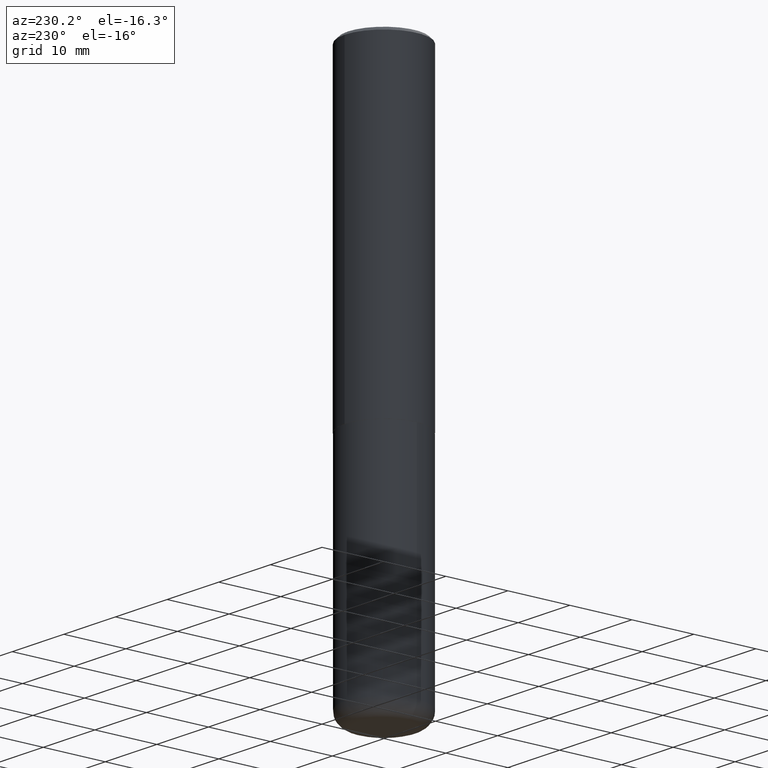
[diagram: clean part render]
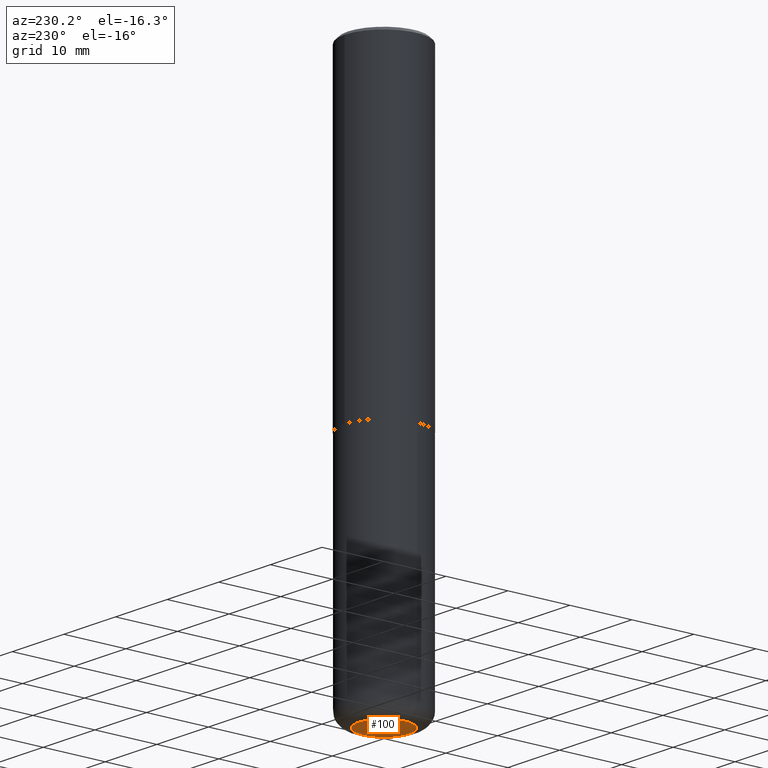
[diagram: same view with one face highlighted and labeled with its STEP entity id]
A machine part, auxiliary view. The second image highlights one B-rep face of the part: STEP entity #100.
In plain terms, the highlighted planar face has unit normal (0, -0, -1).
Its self-contained STEP definition (entity closure, byte-faithful):
#1 = DIRECTION ( 'NONE',  ( -2.445468806185136597E-29, 3.491481338843145583E-15, 1.000000000000000000 ) ) ;
#22 = ORIENTED_EDGE ( 'NONE', *, *, #150, .F. ) ;
#46 = DIRECTION ( 'NONE',  ( -1.000000000000000000, 6.982962677686265922E-15, -4.876176775795935793E-29 ) ) ;
#67 = FACE_OUTER_BOUND ( 'NONE', #109, .T. ) ;
#70 = AXIS2_PLACEMENT_3D ( 'NONE', #275, #1, #193 ) ;
#100 = ADVANCED_FACE ( 'NONE', ( #67 ), #417, .T. ) ;
#109 = EDGE_LOOP ( 'NONE', ( #22, #116 ) ) ;
#116 = ORIENTED_EDGE ( 'NONE', *, *, #402, .F. ) ;
#150 = EDGE_CURVE ( 'NONE', #239, #371, #296, .T. ) ;
#193 = DIRECTION ( 'NONE',  ( 1.000000000000000000, -6.982962677686259611E-15, 0.000000000000000000 ) ) ;
#196 = AXIS2_PLACEMENT_3D ( 'NONE', #322, #325, #46 ) ;
#205 = DIRECTION ( 'NONE',  ( -2.445468806185136597E-29, 3.491481338843145583E-15, 1.000000000000000000 ) ) ;
#235 = CARTESIAN_POINT ( 'NONE',  ( 8.559140821647976968E-29, -1.222018468595100619E-14, -3.499999999999999112 ) ) ;
#239 = VERTEX_POINT ( 'NONE', #383 ) ;
#275 = CARTESIAN_POINT ( 'NONE',  ( 8.559140821647976968E-29, -1.222018468595100619E-14, -3.499999999999999112 ) ) ;
#290 = CIRCLE ( 'NONE', #392, 0.1600000000000000033 ) ;
#296 = CIRCLE ( 'NONE', #70, 0.1600000000000000033 ) ;
#301 = CARTESIAN_POINT ( 'NONE',  ( -0.1600000000000000033, -1.060645541739486182E-14, -3.499999999999999112 ) ) ;
#322 = CARTESIAN_POINT ( 'NONE',  ( 1.690506257577845460E-28, -2.683497136698531760E-16, -3.499999999999999112 ) ) ;
#325 = DIRECTION ( 'NONE',  ( 2.438088387897960049E-29, -3.491481338843145188E-15, -1.000000000000000000 ) ) ;
#365 = DIRECTION ( 'NONE',  ( 1.000000000000000000, -6.982962677686259611E-15, 0.000000000000000000 ) ) ;
#371 = VERTEX_POINT ( 'NONE', #301 ) ;
#383 = CARTESIAN_POINT ( 'NONE',  ( 0.1600000000000000033, -1.333745871438080791E-14, -3.499999999999999112 ) ) ;
#392 = AXIS2_PLACEMENT_3D ( 'NONE', #235, #205, #365 ) ;
#402 = EDGE_CURVE ( 'NONE', #371, #239, #290, .T. ) ;
#417 = PLANE ( 'NONE',  #196 ) ;